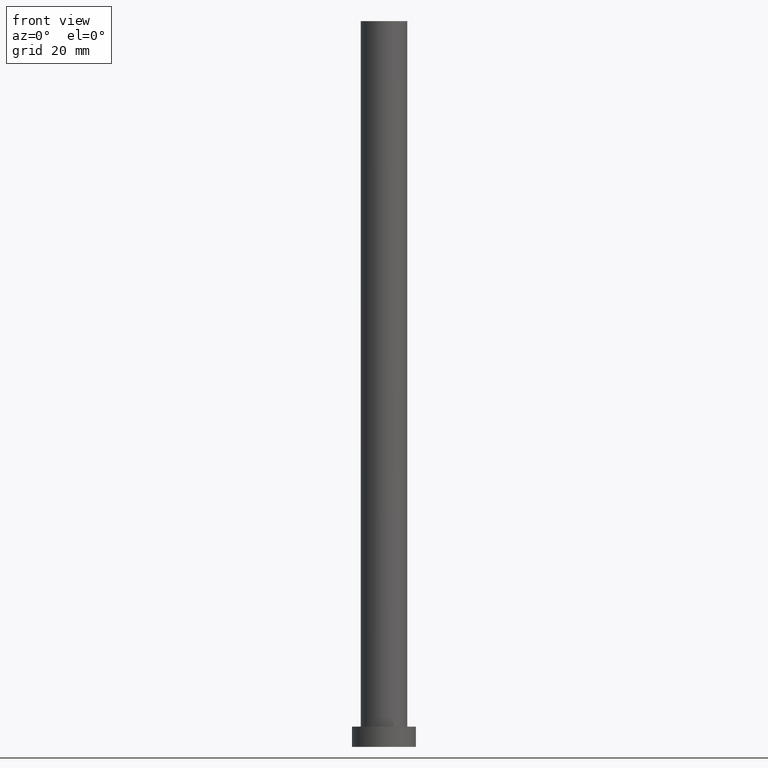
[diagram: clean part render]
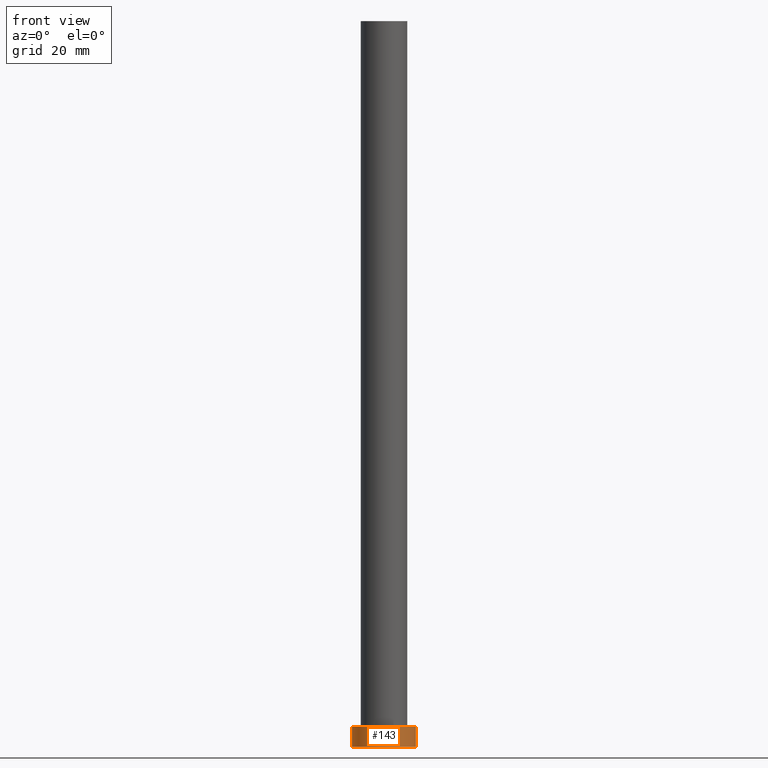
[diagram: same view with one face highlighted and labeled with its STEP entity id]
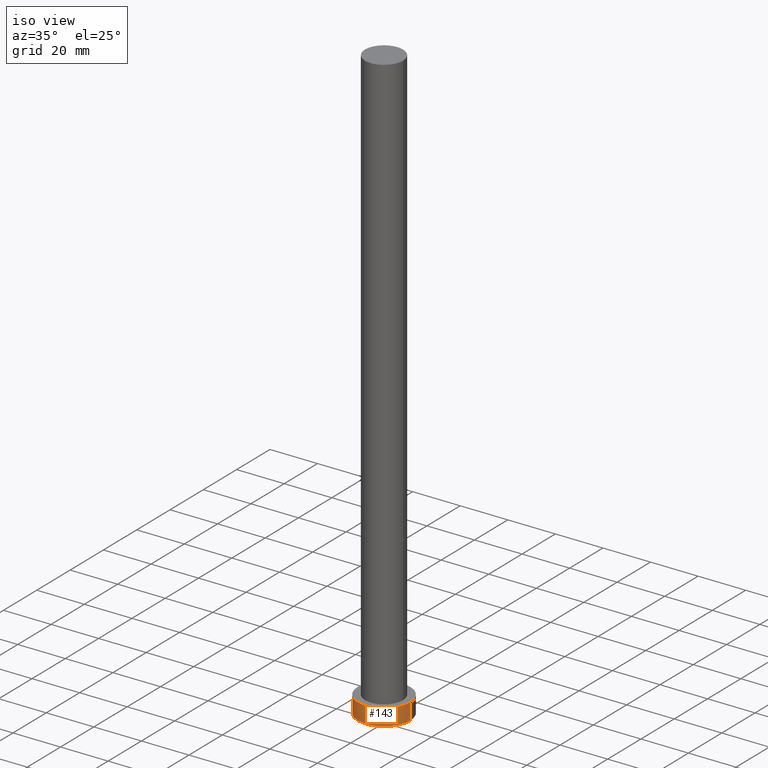
[diagram: same view with one face highlighted and labeled with its STEP entity id]
A machine part, front view. The second image highlights one B-rep face of the part: STEP entity #143.
A second angle (iso view) of the same face is appended — the face is thin or edge-on in the first view.
In plain terms, the highlighted cylindrical surface (edge-blend (fillet) strip) has radius 11 mm, axis along (-0, -0, -1).
Its self-contained STEP definition (entity closure, byte-faithful):
#2 = DIRECTION ( 'NONE',  ( -0.000000000000000000, -0.000000000000000000, -1.000000000000000000 ) ) ;
#3 = DIRECTION ( 'NONE',  ( -0.000000000000000000, -0.000000000000000000, -1.000000000000000000 ) ) ;
#10 = DIRECTION ( 'NONE',  ( 0.000000000000000000, 0.000000000000000000, 1.000000000000000000 ) ) ;
#13 = VERTEX_POINT ( 'NONE', #60 ) ;
#15 = ORIENTED_EDGE ( 'NONE', *, *, #41, .T. ) ;
#25 = LINE ( 'NONE', #42, #188 ) ;
#41 = EDGE_CURVE ( 'NONE', #13, #255, #184, .T. ) ;
#42 = CARTESIAN_POINT ( 'NONE',  ( 11.00000000000000000, 1.347111479062088405E-15, 7.000000000000000000 ) ) ;
#58 = ORIENTED_EDGE ( 'NONE', *, *, #254, .F. ) ;
#60 = CARTESIAN_POINT ( 'NONE',  ( -11.00000000000000000, 0.000000000000000000, 7.000000000000000000 ) ) ;
#62 = ORIENTED_EDGE ( 'NONE', *, *, #121, .F. ) ;
#65 = CARTESIAN_POINT ( 'NONE',  ( -11.00000000000000000, 0.000000000000000000, 7.000000000000000000 ) ) ;
#70 = AXIS2_PLACEMENT_3D ( 'NONE', #208, #168, #93 ) ;
#79 = DIRECTION ( 'NONE',  ( -1.000000000000000000, 0.000000000000000000, 0.000000000000000000 ) ) ;
#81 = CIRCLE ( 'NONE', #128, 11.00000000000000000 ) ;
#84 = CARTESIAN_POINT ( 'NONE',  ( 11.00000000000000000, 1.347111479062088405E-15, 7.000000000000000000 ) ) ;
#92 = CARTESIAN_POINT ( 'NONE',  ( -11.00000000000000000, 0.000000000000000000, 0.000000000000000000 ) ) ;
#93 = DIRECTION ( 'NONE',  ( 1.000000000000000000, 0.000000000000000000, 0.000000000000000000 ) ) ;
#94 = AXIS2_PLACEMENT_3D ( 'NONE', #123, #2, #79 ) ;
#120 = VERTEX_POINT ( 'NONE', #84 ) ;
#121 = EDGE_CURVE ( 'NONE', #120, #160, #25, .T. ) ;
#122 = CARTESIAN_POINT ( 'NONE',  ( 0.000000000000000000, 0.000000000000000000, 0.000000000000000000 ) ) ;
#123 = CARTESIAN_POINT ( 'NONE',  ( 0.000000000000000000, 0.000000000000000000, 7.000000000000000000 ) ) ;
#125 = FACE_OUTER_BOUND ( 'NONE', #180, .T. ) ;
#128 = AXIS2_PLACEMENT_3D ( 'NONE', #122, #10, #170 ) ;
#143 = ADVANCED_FACE ( 'NONE', ( #125 ), #243, .T. ) ;
#160 = VERTEX_POINT ( 'NONE', #206 ) ;
#163 = DIRECTION ( 'NONE',  ( -0.000000000000000000, -0.000000000000000000, -1.000000000000000000 ) ) ;
#167 = ORIENTED_EDGE ( 'NONE', *, *, #189, .T. ) ;
#168 = DIRECTION ( 'NONE',  ( 0.000000000000000000, 0.000000000000000000, 1.000000000000000000 ) ) ;
#170 = DIRECTION ( 'NONE',  ( 1.000000000000000000, 0.000000000000000000, 0.000000000000000000 ) ) ;
#180 = EDGE_LOOP ( 'NONE', ( #62, #58, #15, #167 ) ) ;
#184 = LINE ( 'NONE', #65, #213 ) ;
#188 = VECTOR ( 'NONE', #163, 1000.000000000000000 ) ;
#189 = EDGE_CURVE ( 'NONE', #255, #160, #81, .T. ) ;
#206 = CARTESIAN_POINT ( 'NONE',  ( 11.00000000000000000, 1.347111479062088405E-15, 0.000000000000000000 ) ) ;
#208 = CARTESIAN_POINT ( 'NONE',  ( 0.000000000000000000, 0.000000000000000000, 7.000000000000000000 ) ) ;
#213 = VECTOR ( 'NONE', #3, 1000.000000000000000 ) ;
#243 = CYLINDRICAL_SURFACE ( 'NONE', #94, 11.00000000000000000 ) ;
#248 = CIRCLE ( 'NONE', #70, 11.00000000000000000 ) ;
#254 = EDGE_CURVE ( 'NONE', #13, #120, #248, .T. ) ;
#255 = VERTEX_POINT ( 'NONE', #92 ) ;